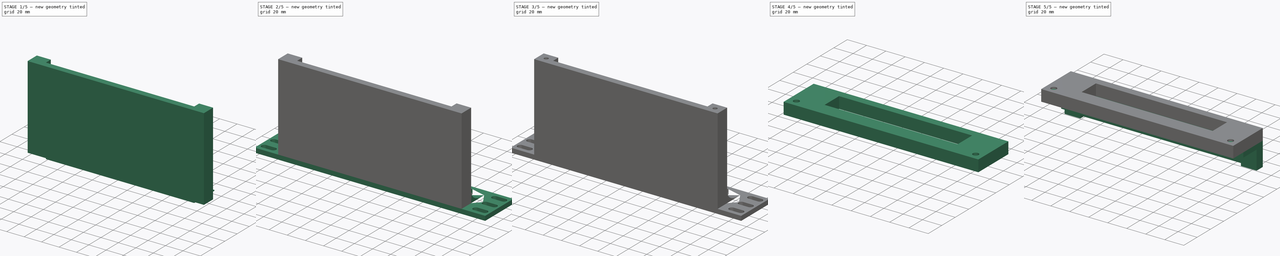
[diagram: build sequence overview — one tinted view per stage of 5, left to right]
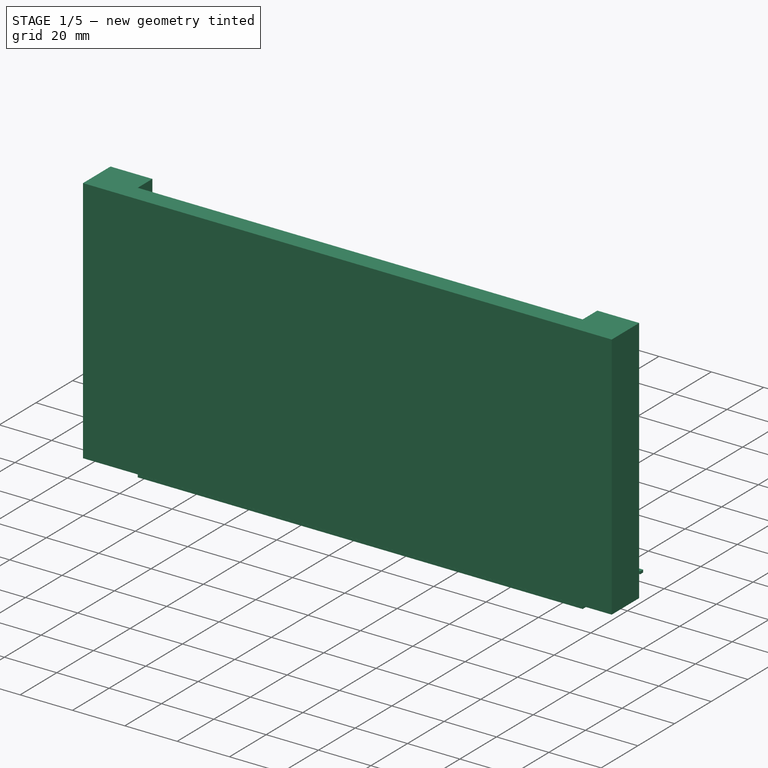
[diagram: stage 1 of 5 — iso view after this stage's code; geometry added in this stage tinted green]
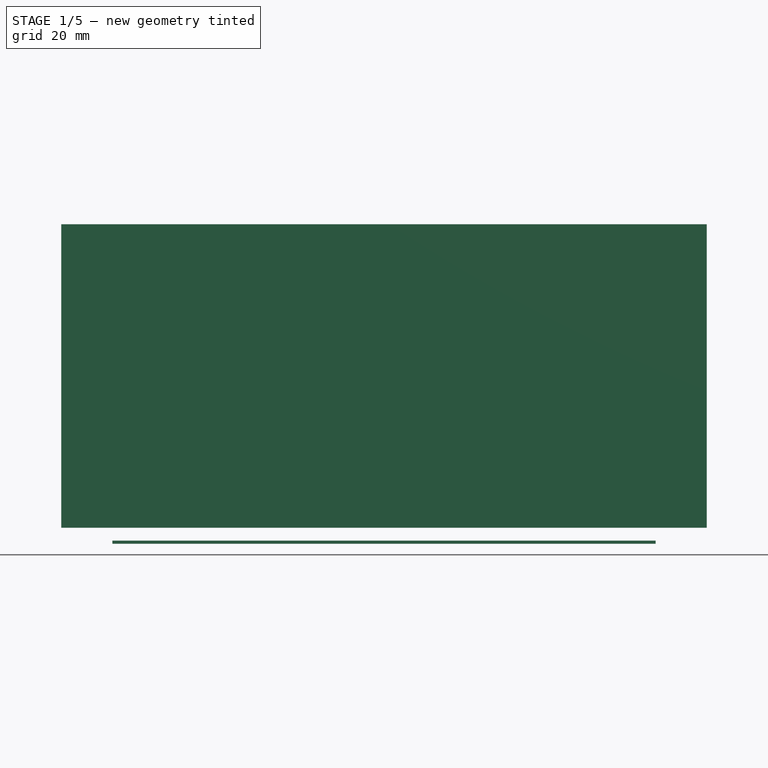
[diagram: stage 1 of 5 — front view after this stage's code; geometry added in this stage tinted green]
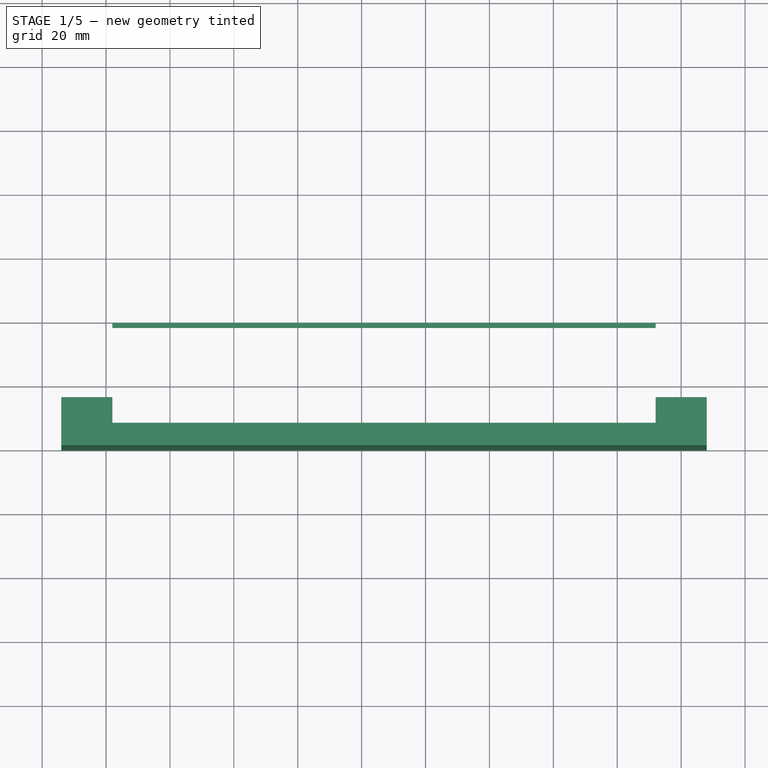
[diagram: stage 1 of 5 — top view after this stage's code; geometry added in this stage tinted green]
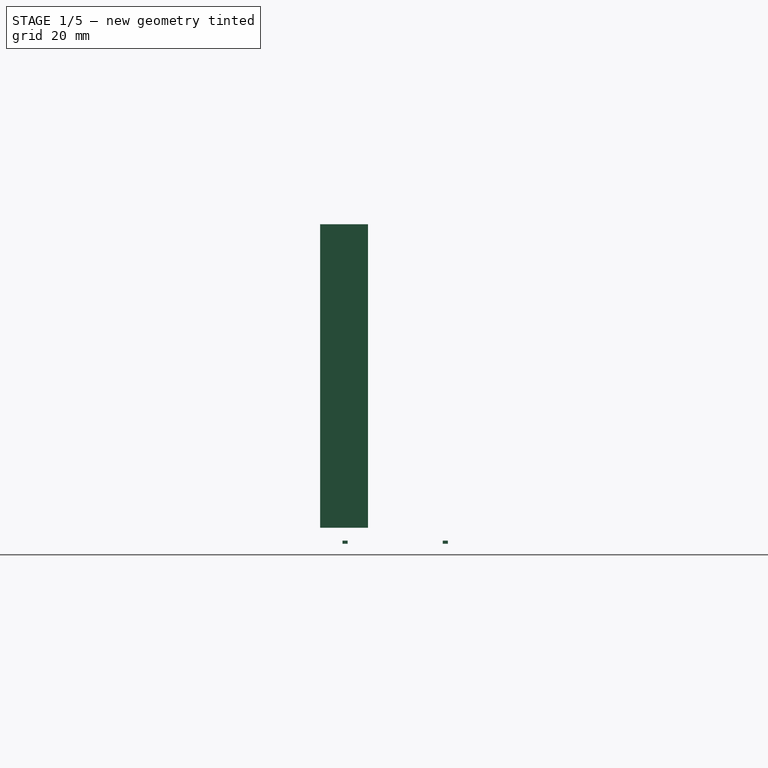
[diagram: stage 1 of 5 — right view after this stage's code; geometry added in this stage tinted green]
FCSTD DOCUMENT  (FreeCAD 0.21RUnknown)
Label: 10InchRackMount
License: All rights reserved
LicenseURL: https://en.wikipedia.org/wiki/All_rights_reserved
objects: Part::Extrusion×12, Sketcher::SketchObject×11, Part::Face×11, Part::Fuse×3, Part::Cut×2, Part::Compound×2
note: 41 computed .brp shape members not serialized (recipe doc carries the construction recipe); baked Part::Feature solids carry a one-line shape summary decoded from their .brp

FEATURE [Sketcher::SketchObject] Sketch
  FullyConstrained = false
  sketch-geometry (53):
    g0: LineSegment StartX=0 StartY=0 StartZ=0 EndX=254 EndY=0 EndZ=0
    g1: LineSegment StartX=254 StartY=0 StartZ=0 EndX=254 EndY=44.44 EndZ=0
    g2: LineSegment StartX=254 StartY=44.44 StartZ=0 EndX=0 EndY=44.44 EndZ=0
    g3: LineSegment StartX=0 StartY=44.44 StartZ=0 EndX=0 EndY=0 EndZ=0
    g4: ArcOfCircle CenterX=5.5 CenterY=37.0333 CenterZ=0 NormalX=0 NormalY=0 NormalZ=1 AngleXU=0 Radius=3.1 StartAngle=1.5708 EndAngle=4.71239
    g5: ArcOfCircle CenterX=15.5 CenterY=37.0333 CenterZ=0 NormalX=0 NormalY=0 NormalZ=1 AngleXU=0 Radius=3.1 StartAngle=4.71239 EndAngle=7.85398
    g6: LineSegment StartX=5.5 StartY=33.9333 StartZ=0 EndX=15.5 EndY=33.9333 EndZ=0
    g7: LineSegment StartX=15.5 StartY=40.1333 StartZ=0 EndX=5.5 EndY=40.1333 EndZ=0
    g8: GeomPoint X=2.4 Y=37.0333 Z=0
    g9: GeomPoint X=18.6 Y=37.0333 Z=0
    g10: ArcOfCircle CenterX=5.5 CenterY=22.22 CenterZ=0 NormalX=0 NormalY=0 NormalZ=1 AngleXU=0 Radius=3.1 StartAngle=1.5708 EndAngle=4.71239
    g11: ArcOfCircle CenterX=15.5 CenterY=22.22 CenterZ=0 NormalX=0 NormalY=0 NormalZ=1 AngleXU=0 Radius=3.1 StartAngle=4.71239 EndAngle=7.85398
    g12: LineSegment StartX=5.5 StartY=19.12 StartZ=0 EndX=15.5 EndY=19.12 EndZ=0
    g13: LineSegment StartX=15.5 StartY=25.32 StartZ=0 EndX=5.5 EndY=25.32 EndZ=0
    g14: ArcOfCircle CenterX=5.5 CenterY=7.40667 CenterZ=0 NormalX=0 NormalY=0 NormalZ=1 AngleXU=0 Radius=3.1 StartAngle=1.5708 EndAngle=4.71239
    g15: ArcOfCircle CenterX=15.5 CenterY=7.40667 CenterZ=0 NormalX=0 NormalY=0 NormalZ=1 AngleXU=0 Radius=3.1 StartAngle=4.71239 EndAngle=7.85398
    g16: LineSegment StartX=5.5 StartY=4.30667 StartZ=0 EndX=15.5 EndY=4.30667 EndZ=0
    g17: LineSegment StartX=15.5 StartY=10.5067 StartZ=0 EndX=5.5 EndY=10.5067 EndZ=0
    g18: ArcOfCircle CenterX=238.5 CenterY=37.0333 CenterZ=0 NormalX=0 NormalY=0 NormalZ=1 AngleXU=0 Radius=3.1 StartAngle=1.5708 EndAngle=4.71239
    g19: ArcOfCircle CenterX=248.5 CenterY=37.0333 CenterZ=0 NormalX=0 NormalY=0 NormalZ=1 AngleXU=0 Radius=3.1 StartAngle=4.71239 EndAngle=7.85398
    g20: LineSegment StartX=238.5 StartY=33.9333 StartZ=0 EndX=248.5 EndY=33.9333 EndZ=0
    g21: LineSegment StartX=248.5 StartY=40.1333 StartZ=0 EndX=238.5 EndY=40.1333 EndZ=0
    g22: ArcOfCircle CenterX=238.5 CenterY=22.22 CenterZ=0 NormalX=0 NormalY=0 NormalZ=1 AngleXU=0 Radius=3.1 StartAngle=1.5708 EndAngle=4.71239
    g23: ArcOfCircle CenterX=248.5 CenterY=22.22 CenterZ=0 NormalX=0 NormalY=0 NormalZ=1 AngleXU=0 Radius=3.1 StartAngle=4.71239 EndAngle=7.85398
    g24: LineSegment StartX=238.5 StartY=19.12 StartZ=0 EndX=248.5 EndY=19.12 EndZ=0
    g25: LineSegment StartX=248.5 StartY=25.32 StartZ=0 EndX=238.5 EndY=25.32 EndZ=0
    g26: ArcOfCircle CenterX=238.5 CenterY=7.40667 CenterZ=0 NormalX=0 NormalY=0 NormalZ=1 AngleXU=0 Radius=3.1 StartAngle=1.5708 EndAngle=4.71239
    g27: ArcOfCircle CenterX=248.5 CenterY=7.40667 CenterZ=0 NormalX=0 NormalY=0 NormalZ=1 AngleXU=0 Radius=3.1 StartAngle=4.71239 EndAngle=7.85398
    g28: LineSegment StartX=238.5 StartY=4.30667 StartZ=0 EndX=248.5 EndY=4.30667 EndZ=0
    g29: LineSegment StartX=248.5 StartY=10.5067 StartZ=0 EndX=238.5 EndY=10.5067 EndZ=0
    g30: LineSegment StartX=5.5 StartY=40.1333 StartZ=0 EndX=5.5 EndY=33.9333 EndZ=0
    g31: LineSegment StartX=5.5 StartY=25.32 StartZ=0 EndX=5.5 EndY=19.12 EndZ=0
    g32: LineSegment StartX=5.5 StartY=10.5067 StartZ=0 EndX=5.5 EndY=4.30667 EndZ=0
    g33: LineSegment StartX=-22.4648 StartY=44.44 StartZ=0 EndX=-22.4648 EndY=22.22 EndZ=0
    g34: LineSegment StartX=-22.4648 StartY=22.22 StartZ=0 EndX=-22.4648 EndY=0 EndZ=0
    g35: LineSegment StartX=-5.0984 StartY=44.44 StartZ=0 EndX=-5.0984 EndY=37.0333 EndZ=0
    g36: LineSegment StartX=-5.0984 StartY=37.0333 StartZ=0 EndX=-5.0984 EndY=29.6267 EndZ=0
    g37: LineSegment StartX=-5.0984 StartY=29.6267 StartZ=0 EndX=-5.0984 EndY=22.22 EndZ=0
    g38: LineSegment StartX=-5.0984 StartY=22.22 StartZ=0 EndX=-5.0984 EndY=14.8133 EndZ=0
    g39: LineSegment StartX=-5.0984 StartY=14.8133 StartZ=0 EndX=-5.0984 EndY=7.40667 EndZ=0
    g40: LineSegment StartX=-5.0984 StartY=7.40667 StartZ=0 EndX=-5.0984 EndY=0 EndZ=0
    g41: LineSegment StartX=5.5 StartY=37.0333 StartZ=0 EndX=15.5 EndY=37.0333 EndZ=0
    g42: LineSegment StartX=238.5 StartY=37.0333 StartZ=0 EndX=248.5 EndY=37.0333 EndZ=0
    g43: LineSegment StartX=248.5 StartY=40.1333 StartZ=0 EndX=248.5 EndY=33.9333 EndZ=0
    g44: LineSegment StartX=248.5 StartY=25.32 StartZ=0 EndX=248.5 EndY=19.12 EndZ=0
    g45: LineSegment StartX=248.5 StartY=10.5067 StartZ=0 EndX=248.5 EndY=4.30667 EndZ=0
    g46: GeomPoint X=251.6 Y=37.0333 Z=0
    g47: LineSegment StartX=212 StartY=7 StartZ=0 EndX=42 EndY=7 EndZ=0
    g48: LineSegment StartX=42 StartY=7 StartZ=0 EndX=42 EndY=40 EndZ=0
    g49: LineSegment StartX=42 StartY=40 StartZ=0 EndX=212 EndY=40 EndZ=0
    g50: LineSegment StartX=212 StartY=40 StartZ=0 EndX=212 EndY=7 EndZ=0
    g51: LineSegment StartX=0 StartY=2.00049e+07 StartZ=0 EndX=42 EndY=2.00049e+07 EndZ=0
    g52: LineSegment StartX=254 StartY=2.00049e+07 StartZ=0 EndX=212 EndY=2.00049e+07 EndZ=0
  constraints (135):
    c: Coincident(g0,g1)
    c: Coincident(g1,g2)
    c: Coincident(g2,g3)
    c: Coincident(g3,g0)
    c: Horizontal(g0)
    c: Horizontal(g2)
    c: Vertical(g1)
    c: Vertical(g3)
    c: Coincident(g0,g-1)
    c: DistanceX(g2,g2) = 254
    c: DistanceY(g3,g3) = 44.44
    c: Tangent(g4,g6) = -1.5708
    c: Tangent(g6,g5) = -1.5708
    c: Tangent(g5,g7) = -1.5708
    c: Tangent(g7,g4) = -1.5708
    c: Equal(g4,g5)
    c: Horizontal(g6)
    c: DistanceY(g5,g5) = 6.2
    c: DistanceX(g4,g5) = 10
    c: PointOnObject(g8,g4)
    c: Horizontal(g8,g4)
    c: PointOnObject(g9,g5)
    c: Horizontal(g9,g5)
    c: DistanceX(g2,g8) = 2.4
    c: Tangent(g10,g12) = -1.5708
    c: Tangent(g12,g11) = -1.5708
    c: Tangent(g11,g13) = -1.5708
    c: Tangent(g13,g10) = -1.5708
    c: Equal(g10,g11)
    c: Horizontal(g12)
    c: Tangent(g14,g16) = -1.5708
    c: Tangent(g16,g15) = -1.5708
    c: Tangent(g15,g17) = -1.5708
    c: Tangent(g17,g14) = -1.5708
    c: Equal(g14,g15)
    c: Horizontal(g16)
    c: Tangent(g18,g20) = -1.5708
    c: Tangent(g20,g19) = -1.5708
    c: Tangent(g19,g21) = -1.5708
    c: Tangent(g21,g18) = -1.5708
    c: Equal(g18,g19)
    c: Horizontal(g20)
    c: Tangent(g22,g24) = -1.5708
    c: Tangent(g24,g23) = -1.5708
    c: Tangent(g23,g25) = -1.5708
    c: Tangent(g25,g22) = -1.5708
    c: Equal(g22,g23)
    c: Horizontal(g24)
    c: Tangent(g26,g28) = -1.5708
    c: Tangent(g28,g27) = -1.5708
    c: Tangent(g27,g29) = -1.5708
    c: Tangent(g29,g26) = -1.5708
    c: Equal(g26,g27)
    c: Horizontal(g28)
    c: Vertical(g4,g10)
    c: Vertical(g5,g11)
    c: Vertical(g4,g14)
    c: Vertical(g15,g5)
    c: Coincident(g30,g4)
    c: Coincident(g30,g4)
    c: Coincident(g31,g10)
    c: Coincident(g31,g10)
    c: Coincident(g32,g14)
    c: Coincident(g32,g14)
    c: Equal(g30,g31)
    c: Equal(g31,g32)
    c: Vertical(g33)
    c: Coincident(g34,g33)
    c: PointOnObject(g34,g-1)
    c: Vertical(g34)
    c: Horizontal(g33,g2)
    c: Equal(g33,g34)
    c: Horizontal(g33,g10)
    c: Vertical(g35)
    c: Coincident(g36,g35)
    c: Vertical(g36)
    c: Coincident(g37,g36)
    c: Vertical(g37)
    c: Coincident(g38,g37)
    c: Vertical(g38)
    c: Coincident(g39,g38)
    c: Vertical(g39)
    c: Coincident(g40,g39)
    c: PointOnObject(g40,g-1)
    c: Vertical(g40)
    c: Horizontal(g35,g2)
    c: Equal(g40,g39)
    c: Equal(g39,g38)
    c: Equal(g38,g37)
    c: Equal(g37,g36)
    c: Equal(g36,g35)
    c: Horizontal(g35,g8)
    c: Horizontal(g39,g14)
    c: Coincident(g41,g4)
    c: Coincident(g41,g5)
    c: Coincident(g42,g18)
    c: Coincident(g42,g19)
    c: Equal(g41,g42)
    c: Vertical(g19,g23)
    c: Vertical(g23,g27)
    c: Vertical(g18,g22)
    c: Vertical(g22,g26)
    c: Coincident(g43,g19)
    c: Coincident(g43,g19)
    c: Coincident(g44,g23)
    c: Coincident(g44,g23)
    c: Coincident(g45,g27)
    c: Coincident(g45,g27)
    c: Equal(g45,g44)
    c: Equal(g44,g43)
    c: Equal(g43,g30)
    c: Horizontal(g18,g35)
    c: Horizontal(g37,g22)
    c: Horizontal(g26,g14)
    c: PointOnObject(g46,g19)
    c: Horizontal(g46,g19)
    c: DistanceX(g46,g1) = 2.4
    c: Coincident(g47,g48)
    c: Coincident(g48,g49)
    c: Coincident(g49,g50)
    c: Coincident(g50,g47)
    c: Horizontal(g47)
    c: Horizontal(g49)
    c: Vertical(g48)
    c: Vertical(g50)
    c: DistanceY(g48,g48) = 33
    c: DistanceX(g49,g49) = 170
    c: PointOnObject(g51,g-2)
    c: Horizontal(g51)
    c: Horizontal(g52)
    c: Vertical(g52,g1)
    c: Vertical(g52,g49)
    c: Vertical(g51,g48)
    c: Equal(g51,g52)
    c: DistanceY(g0,g47) = 7
FEATURE [Part::Face] Face
  FaceMakerClass = Part::FaceMakerBullseye
  Sources = -> [Sketch]
FEATURE [Part::Extrusion] Extrude
  Base = -> Sketch
  Dir = (0,0,1)
  DirMode = 2
  FaceMakerClass = Part::FaceMakerBullseye
  LengthFwd = 5
  LengthRev = 0
  Solid = true
  Symmetric = false
FEATURE [Sketcher::SketchObject] Sketch001
  ExternalGeometry = -> [Extrude]
  FullyConstrained = true
  MapMode = 5
  Placement = pos=(0,0,5) rot=(0,0,1;0rad)
  Support = -> [Extrude]
  sketch-geometry (8):
    g0: LineSegment StartX=212 StartY=15 StartZ=0 EndX=228 EndY=15 EndZ=0
    g1: LineSegment StartX=228 StartY=15 StartZ=0 EndX=228 EndY=0 EndZ=0
    g2: LineSegment StartX=228 StartY=0 StartZ=0 EndX=26 EndY=0 EndZ=0
    g3: LineSegment StartX=26 StartY=0 StartZ=0 EndX=26 EndY=15 EndZ=0
    g4: LineSegment StartX=26 StartY=15 StartZ=0 EndX=42 EndY=15 EndZ=0
    g5: LineSegment StartX=42 StartY=15 StartZ=0 EndX=42 EndY=7 EndZ=0
    g6: LineSegment StartX=42 StartY=7 StartZ=0 EndX=212 EndY=7 EndZ=0
    g7: LineSegment StartX=212 StartY=7 StartZ=0 EndX=212 EndY=15 EndZ=0
  constraints (22):
    c: PointOnObject(g0,g-4)
    c: Horizontal(g0)
    c: Coincident(g1,g0)
    c: PointOnObject(g1,g-1)
    c: Vertical(g1)
    c: Coincident(g2,g1)
    c: PointOnObject(g2,g-1)
    c: Coincident(g3,g2)
    c: Vertical(g3)
    c: Coincident(g4,g3)
    c: PointOnObject(g4,g-5)
    c: Horizontal(g4)
    c: Coincident(g5,g4)
    c: Coincident(g5,g-5)
    c: Coincident(g6,g5)
    c: Coincident(g6,g-4)
    c: Coincident(g7,g6)
    c: Coincident(g7,g0)
    c: Horizontal(g0,g4)
    c: Equal(g4,g0)
    c: DistanceX(g0,g0) = 16
    c: DistanceY(g7,g7) = 8
FEATURE [Part::Face] Face001
  FaceMakerClass = Part::FaceMakerBullseye
  Sources = -> [Sketch001]
FEATURE [Part::Extrusion] Extrude001
  Base = -> Face001
  Dir = (0,0,1)
  DirMode = 2
  FaceMakerClass = Part::FaceMakerBullseye
  LengthFwd = 95
  LengthRev = 0
  Solid = false
  Symmetric = false
FEATURE [Sketcher::SketchObject] Sketch005
  ExternalGeometry = -> [Extrude]
  FullyConstrained = true
  MapMode = 5
  Placement = pos=(0,7,0) rot=(0,0.707107,0.707107;3.14159rad)
  Support = -> [Extrude]
  sketch-geometry (4):
    g0: LineSegment StartX=-212 StartY=0 StartZ=0 EndX=-42 EndY=0 EndZ=0
    g1: LineSegment StartX=-42 StartY=0 StartZ=0 EndX=-42 EndY=1 EndZ=0
    g2: LineSegment StartX=-42 StartY=1 StartZ=0 EndX=-212 EndY=1 EndZ=0
    g3: LineSegment StartX=-212 StartY=1 StartZ=0 EndX=-212 EndY=0 EndZ=0
  constraints (10):
    c: Coincident(g0,g1)
    c: Coincident(g1,g2)
    c: Coincident(g2,g3)
    c: Coincident(g3,g0)
    c: Horizontal(g2)
    c: Vertical(g1)
    c: Vertical(g3)
    c: Coincident(g0,g-3)
    c: Coincident(g0,g-3)
    c: Distance(g2,g0) = 1
FEATURE [Part::Face] Face005
  FaceMakerClass = Part::FaceMakerBullseye
  Sources = -> [Sketch005]
FEATURE [Part::Extrusion] Extrude006
  Base = -> Face005
  Dir = (0,1,0)
  DirMode = 2
  FaceMakerClass = Part::FaceMakerBullseye
  LengthFwd = 1.6
  LengthRev = 0
  Solid = false
  Symmetric = false
FEATURE [Sketcher::SketchObject] Sketch006
  ExternalGeometry = -> [Extrude]
  FullyConstrained = true
  MapMode = 5
  Placement = pos=(0,40,0) rot=(1,0,0;1.5708rad)
  Support = -> [Extrude]
  sketch-geometry (4):
    g0: LineSegment StartX=42 StartY=0 StartZ=0 EndX=212 EndY=0 EndZ=0
    g1: LineSegment StartX=212 StartY=0 StartZ=0 EndX=212 EndY=1 EndZ=0
    g2: LineSegment StartX=212 StartY=1 StartZ=0 EndX=42 EndY=1 EndZ=0
    g3: LineSegment StartX=42 StartY=1 StartZ=0 EndX=42 EndY=0 EndZ=0
  constraints (10):
    c: Coincident(g0,g1)
    c: Coincident(g1,g2)
    c: Coincident(g2,g3)
    c: Coincident(g3,g0)
    c: Horizontal(g2)
    c: Vertical(g1)
    c: Vertical(g3)
    c: Coincident(g0,g-3)
    c: Distance(g1,g0) = 1
    c: Coincident(g-3,g0)
FEATURE [Part::Face] Face006
  FaceMakerClass = Part::FaceMakerBullseye
  Sources = -> [Sketch006]
FEATURE [Part::Extrusion] Extrude007
  Base = -> Face006
  Dir = (0,1,0)
  DirMode = 2
  FaceMakerClass = Part::FaceMakerBullseye
  LengthFwd = -1.6
  LengthRev = 0
  Solid = false
  Symmetric = false
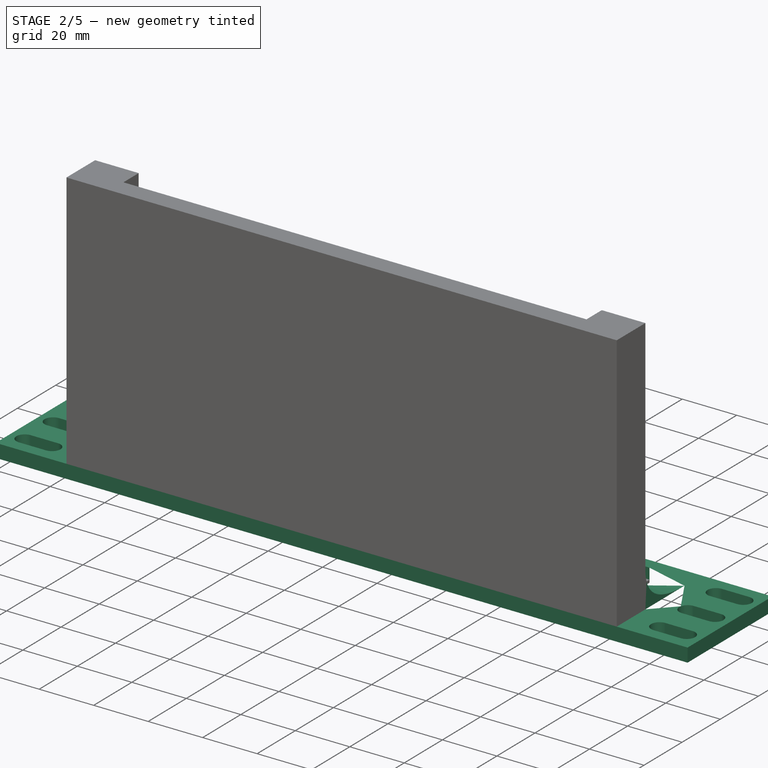
[diagram: stage 2 of 5 — iso view after this stage's code; geometry added in this stage tinted green]
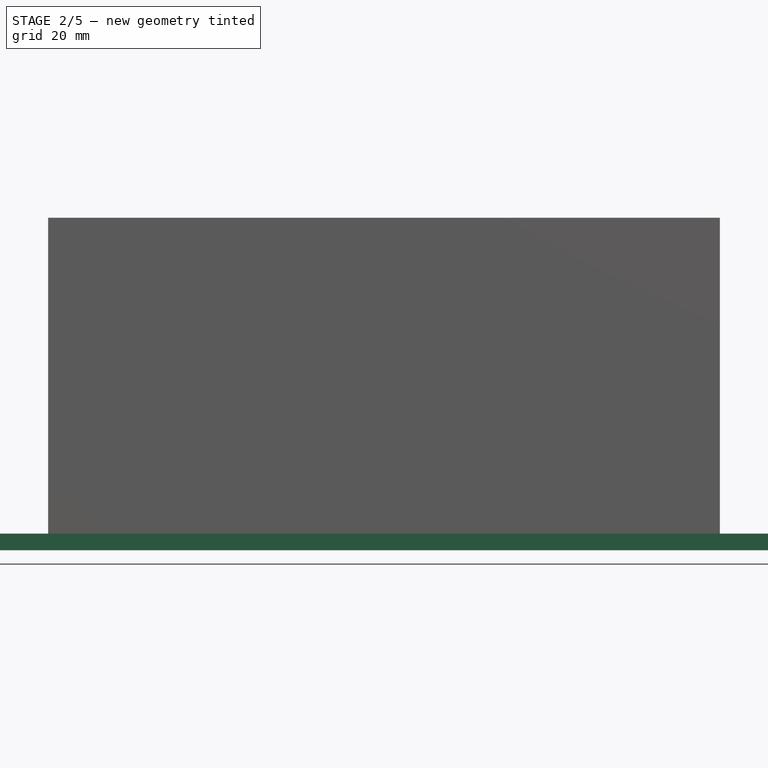
[diagram: stage 2 of 5 — front view after this stage's code; geometry added in this stage tinted green]
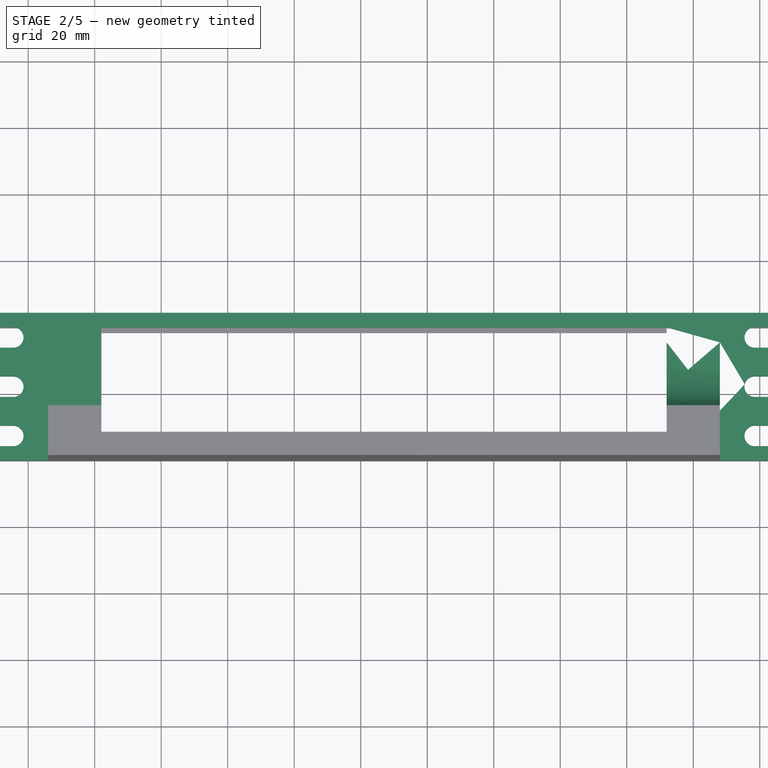
[diagram: stage 2 of 5 — top view after this stage's code; geometry added in this stage tinted green]
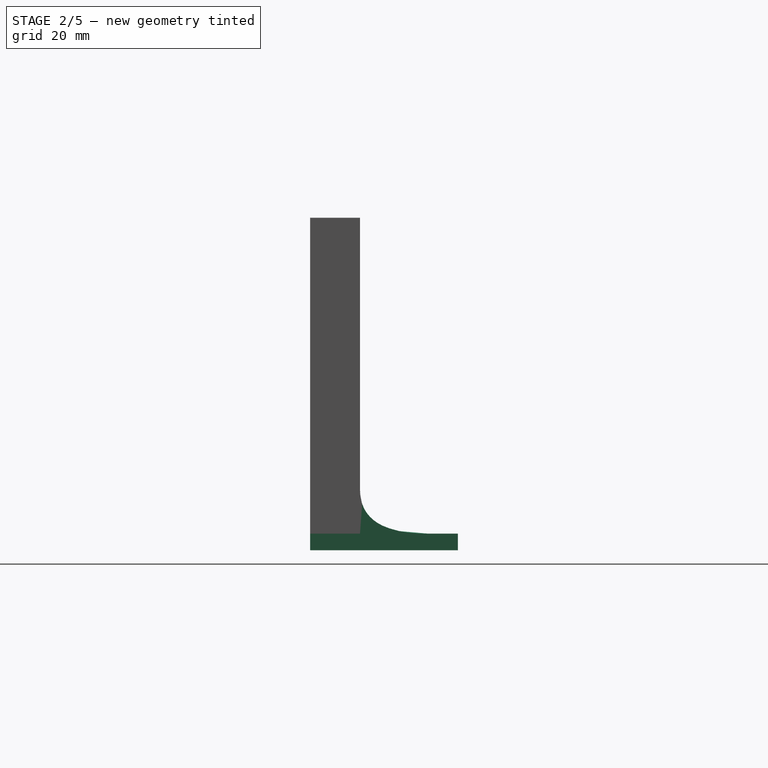
[diagram: stage 2 of 5 — right view after this stage's code; geometry added in this stage tinted green]
FEATURE [Sketcher::SketchObject] Sketch003
  ExternalGeometry = -> [Extrude001]
  FullyConstrained = false
  MapMode = 5
  Placement = pos=(228,0,0) rot=(0.57735,0.57735,0.57735;2.0944rad)
  Support = -> [Extrude001]
  sketch-geometry (8):
    g0: LineSegment StartX=15 StartY=5 StartZ=0 EndX=35.5194 EndY=5 EndZ=0
    g1: LineSegment StartX=15 StartY=5 StartZ=0 EndX=15 EndY=18.2604 EndZ=0
    g2: Circle CenterX=15 CenterY=18.2604 CenterZ=0 NormalX=0 NormalY=0 NormalZ=1 AngleXU=0 Radius=1
    g3: Circle CenterX=14.9978 CenterY=4.99678 CenterZ=0 NormalX=0 NormalY=0 NormalZ=1 AngleXU=0 Radius=1
    g4: Circle CenterX=35.5194 CenterY=5 CenterZ=0 NormalX=0 NormalY=0 NormalZ=1 AngleXU=0 Radius=1
    g5: BSplineCurve PolesCount=3 KnotsCount=2 Degree=2 IsPeriodic=0
    g6: GeomPoint X=15 Y=18.2604 Z=0
    g7: GeomPoint X=35.5194 Y=5 Z=0
  constraints (14):
    c: Coincident(g0,g-3)
    c: Horizontal(g0)
    c: Coincident(g1,g0)
    c: PointOnObject(g1,g-3)
    c: Weight(g2) = 1
    c: Coincident(g5,g1)
    c: Equal(g2,g3)
    c: Equal(g2,g4)
    c: Coincident(g5,g0)
    c: InternalAlignment(g2,g5)
    c: InternalAlignment(g3,g5)
    c: InternalAlignment(g4,g5)
    c: InternalAlignment(g6,g5)
    c: InternalAlignment(g7,g5)
FEATURE [Part::Face] Face003
  FaceMakerClass = Part::FaceMakerBullseye
  Sources = -> [Sketch003]
FEATURE [Part::Extrusion] Extrude003
  Base = -> Sketch003
  Dir = (1,0,0)
  DirMode = 2
  FaceMakerClass = Part::FaceMakerBullseye
  LengthFwd = -16
  LengthRev = 0
  Solid = true
  Symmetric = false
FEATURE [Part::Fuse] Fusion
  Base = -> Extrude
  Tool = -> Extrude001
FEATURE [Part::Fuse] Fusion001
  Base = -> Extrude003
  Tool = -> Fusion
FEATURE [Sketcher::SketchObject] Sketch004
  ExternalGeometry = -> [Extrude001]
  FullyConstrained = true
  MapMode = 5
  Placement = pos=(0,0,100) rot=(0,0,1;0rad)
  Support = -> [Extrude001]
  sketch-geometry (6):
    g0: Circle CenterX=34 CenterY=7.5 CenterZ=0 NormalX=0 NormalY=0 NormalZ=1 AngleXU=0 Radius=2.25
    g1: Circle CenterX=220 CenterY=7.5 CenterZ=0 NormalX=0 NormalY=0 NormalZ=1 AngleXU=0 Radius=2.25
    g2: LineSegment StartX=26 StartY=15 StartZ=0 EndX=42 EndY=1.8e-15 EndZ=0
    g3: LineSegment StartX=228 StartY=15 StartZ=0 EndX=212 EndY=1.8e-15 EndZ=0
    g4: LineSegment StartX=212 StartY=15 StartZ=0 EndX=228 EndY=1.8e-15 EndZ=0
    g5: LineSegment StartX=42 StartY=15 StartZ=0 EndX=26 EndY=1.8e-15 EndZ=0
  constraints (16):
    c: Diameter(g1) = 4.5
    c: Diameter(g0) = 4.5
    c: Coincident(g2,g-6)
    c: PointOnObject(g2,g-1)
    c: Coincident(g3,g-5)
    c: PointOnObject(g3,g-1)
    c: Coincident(g4,g-3)
    c: Coincident(g4,g-5)
    c: Coincident(g5,g-4)
    c: Coincident(g5,g-6)
    c: Vertical(g2,g5)
    c: Vertical(g4,g3)
    c: PointOnObject(g0,g5)
    c: PointOnObject(g0,g2)
    c: PointOnObject(g1,g4)
    c: PointOnObject(g1,g3)
FEATURE [Part::Face] Face004
  FaceMakerClass = Part::FaceMakerBullseye
  Sources = -> [Sketch004]
FEATURE [Part::Extrusion] Extrude005
  Base = -> Face004
  Dir = (0,0,1)
  DirMode = 2
  FaceMakerClass = Part::FaceMakerBullseye
  LengthFwd = -10
  LengthRev = 0
  Solid = false
  Symmetric = false
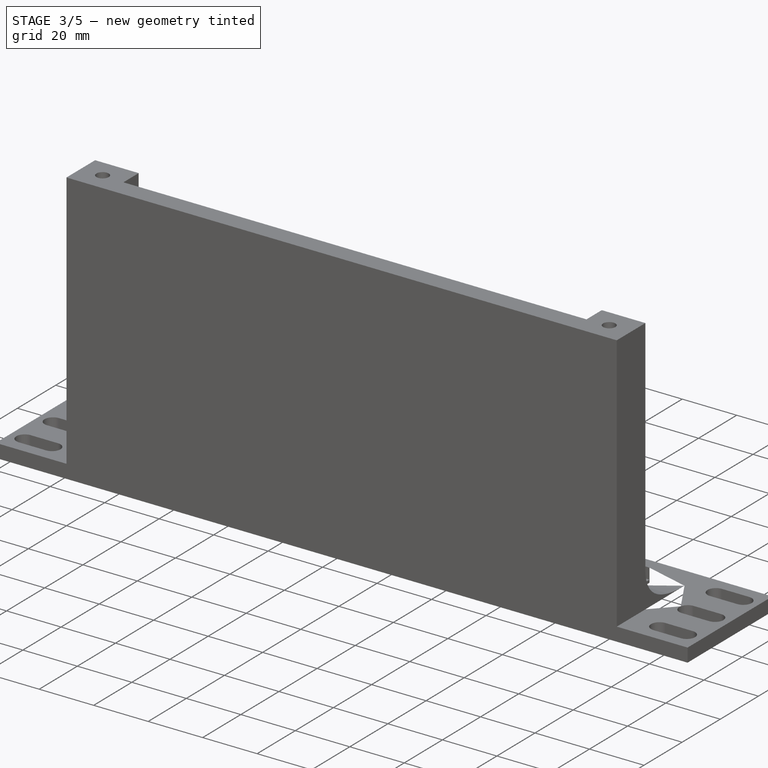
[diagram: stage 3 of 5 — iso view after this stage's code; geometry added in this stage tinted green]
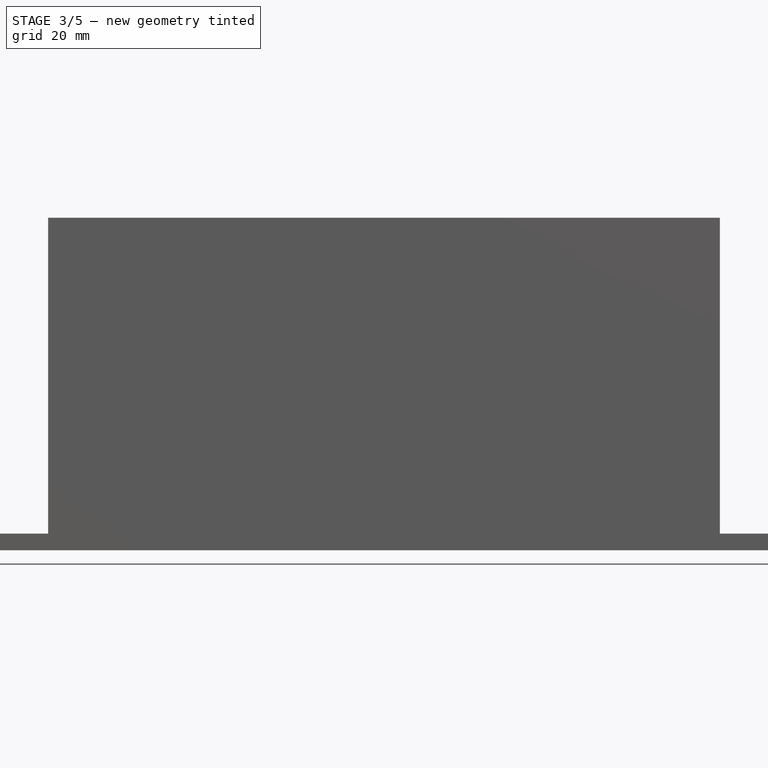
[diagram: stage 3 of 5 — front view after this stage's code; geometry added in this stage tinted green]
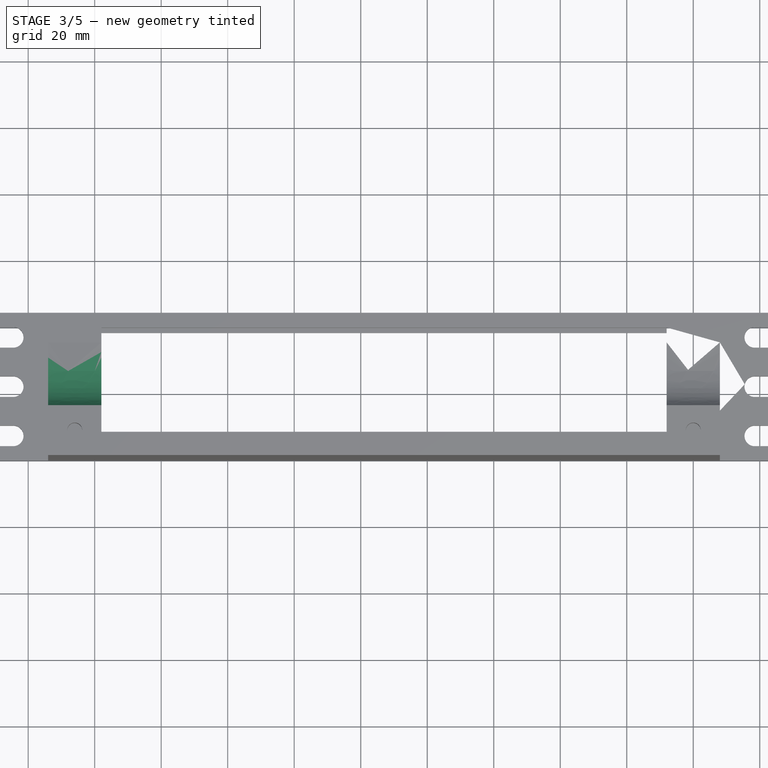
[diagram: stage 3 of 5 — top view after this stage's code; geometry added in this stage tinted green]
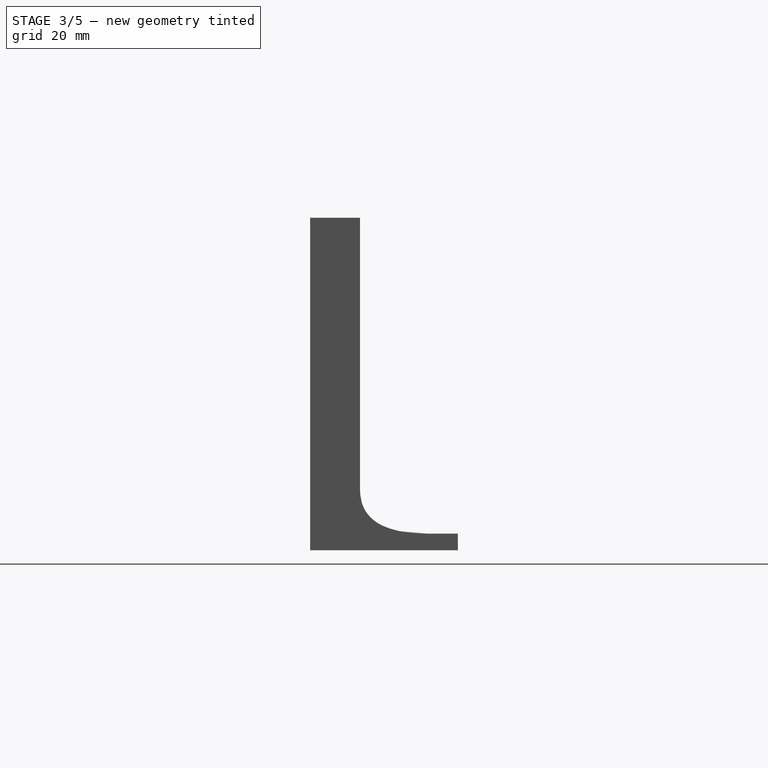
[diagram: stage 3 of 5 — right view after this stage's code; geometry added in this stage tinted green]
FEATURE [Part::Extrusion] Extrude004
  Base = -> Sketch003
  Dir = (1,0,0)
  DirMode = 2
  FaceMakerClass = Part::FaceMakerBullseye
  LengthFwd = -16
  LengthRev = 0
  Placement = pos=(-186,0,0) rot=(0,0,1;0rad)
  Solid = true
  Symmetric = false
FEATURE [Part::Cut] Cut
  Base = -> Fusion001
  Tool = -> Extrude005
FEATURE [Part::Fuse] Fusion002
  Base = -> Extrude004
  Tool = -> Cut
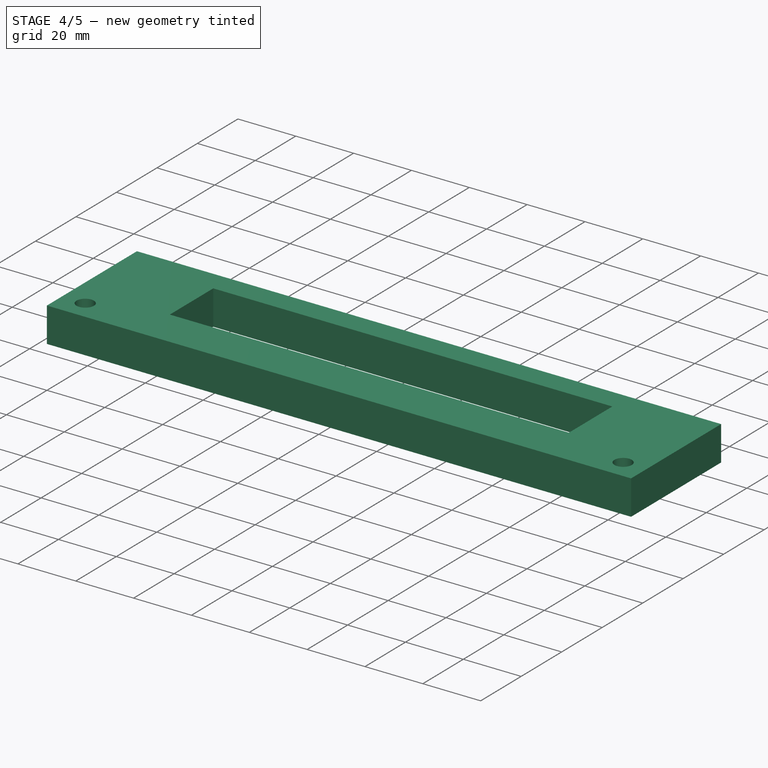
[diagram: stage 4 of 5 — iso view after this stage's code; geometry added in this stage tinted green]
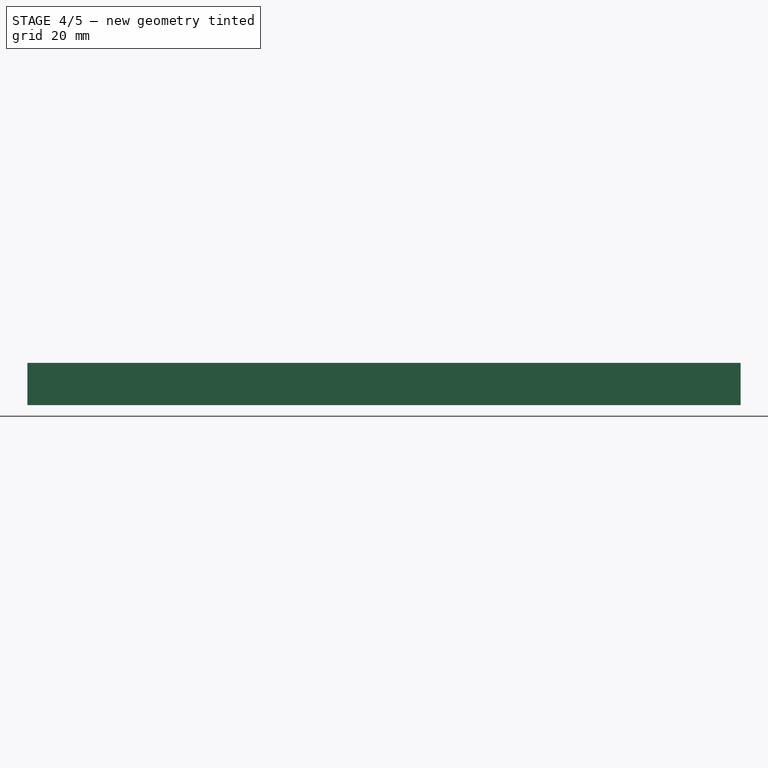
[diagram: stage 4 of 5 — front view after this stage's code; geometry added in this stage tinted green]
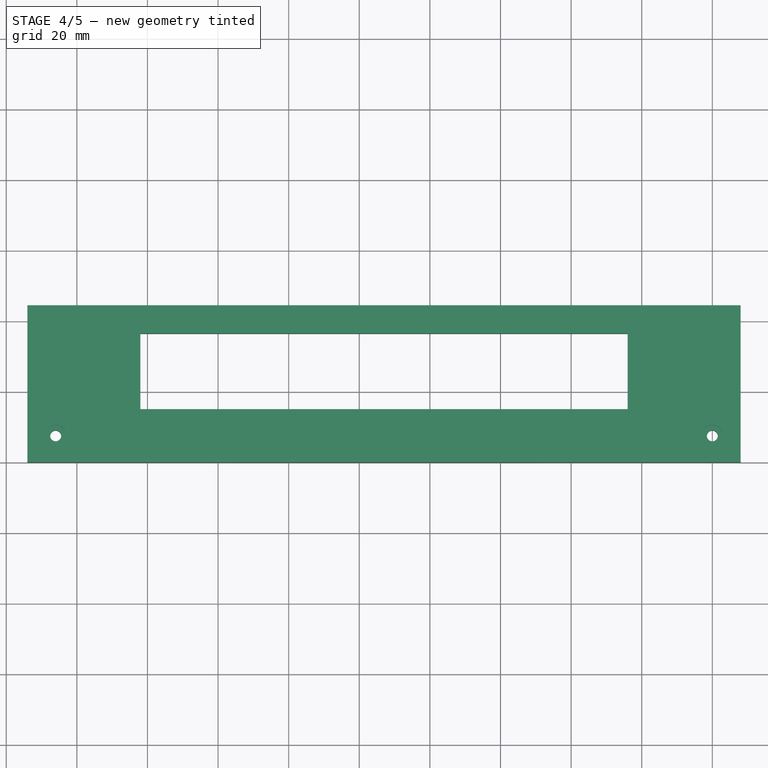
[diagram: stage 4 of 5 — top view after this stage's code; geometry added in this stage tinted green]
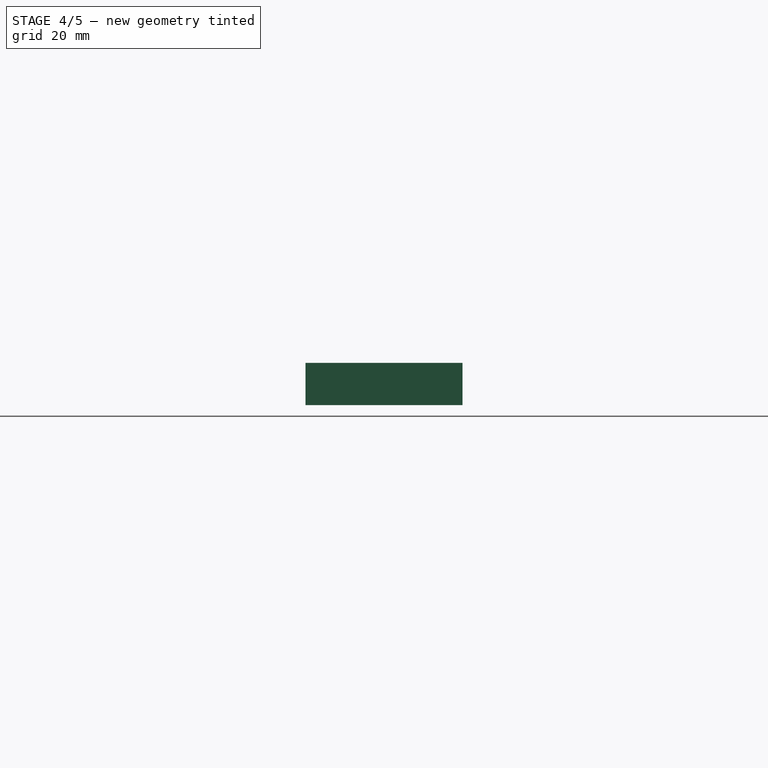
[diagram: stage 4 of 5 — right view after this stage's code; geometry added in this stage tinted green]
FEATURE [Part::Compound] Compound
  Links = -> [Fusion002,Extrude006,Extrude007]
FEATURE [Sketcher::SketchObject] Sketch007
  ExternalGeometry = -> [Extrude001,Extrude,Compound]
  FullyConstrained = true
  MapMode = 5
  Placement = pos=(0,0,100) rot=(0,0,1;0rad)
  Support = -> [Extrude001]
  sketch-geometry (16):
    g0: LineSegment StartX=26 StartY=1.8e-15 StartZ=0 EndX=26 EndY=44.44 EndZ=0
    g1: LineSegment StartX=228 StartY=0 StartZ=0 EndX=228 EndY=44.44 EndZ=0
    g2: LineSegment StartX=26 StartY=15 StartZ=0 EndX=42 EndY=15 EndZ=0
    g3: LineSegment StartX=42 StartY=15 StartZ=0 EndX=58 EndY=15 EndZ=0
    g4: LineSegment StartX=228 StartY=15 StartZ=0 EndX=212 EndY=15 EndZ=0
    g5: LineSegment StartX=212 StartY=15 StartZ=0 EndX=196 EndY=15 EndZ=0
    g6: LineSegment StartX=58 StartY=15 StartZ=0 EndX=196 EndY=15 EndZ=0
    g7: LineSegment StartX=196 StartY=15 StartZ=0 EndX=196 EndY=36.44 EndZ=0
    g8: LineSegment StartX=196 StartY=36.44 StartZ=0 EndX=58 EndY=36.44 EndZ=0
    g9: LineSegment StartX=58 StartY=36.44 StartZ=0 EndX=58 EndY=15 EndZ=0
    g10: LineSegment StartX=26 StartY=44.44 StartZ=0 EndX=228 EndY=44.44 EndZ=0
    g11: LineSegment StartX=228 StartY=0 StartZ=0 EndX=26 EndY=1.8e-15 EndZ=0
    g12: LineSegment StartX=42 StartY=15 StartZ=0 EndX=26 EndY=1.8e-15 EndZ=0
    g13: LineSegment StartX=26 StartY=15 StartZ=0 EndX=42 EndY=1.8e-15 EndZ=0
    g14: Circle CenterX=34 CenterY=7.5 CenterZ=0 NormalX=0 NormalY=0 NormalZ=1 AngleXU=0 Radius=1.55
    g15: Circle CenterX=220 CenterY=7.5 CenterZ=0 NormalX=0 NormalY=0 NormalZ=1 AngleXU=0 Radius=1.55
  constraints (40):
    c: Coincident(g0,g-4)
    c: PointOnObject(g0,g-5)
    c: Vertical(g0)
    c: Coincident(g1,g-3)
    c: PointOnObject(g1,g-5)
    c: Vertical(g1)
    c: Coincident(g2,g-4)
    c: Coincident(g2,g-6)
    c: Coincident(g3,g2)
    c: Horizontal(g3)
    c: Coincident(g4,g-3)
    c: Coincident(g4,g-7)
    c: Coincident(g5,g4)
    c: Horizontal(g5)
    c: Equal(g2,g3)
    c: Equal(g5,g4)
    c: Coincident(g6,g3)
    c: Coincident(g6,g5)
    c: Coincident(g7,g6)
    c: Vertical(g7)
    c: Coincident(g8,g7)
    c: Horizontal(g8)
    c: Coincident(g9,g8)
    c: Coincident(g9,g6)
    c: Vertical(g9)
    c: Coincident(g10,g0)
    c: Coincident(g10,g1)
    c: Coincident(g11,g1)
    c: Coincident(g11,g0)
    c: Coincident(g12,g2)
    c: Coincident(g12,g0)
    c: Coincident(g13,g2)
    c: PointOnObject(g13,g11)
    c: Vertical(g13,g-6)
    c: PointOnObject(g14,g12)
    c: PointOnObject(g14,g13)
    c: Diameter(g14) = 3.1
    c: Coincident(g15,g-8)
    c: Diameter(g15) = 3.1
    c: DistanceY(g7,g1) = 8
FEATURE [Part::Face] Face007
  FaceMakerClass = Part::FaceMakerBullseye
  Sources = -> [Sketch007]
FEATURE [Part::Extrusion] Extrude008
  Base = -> Face007
  Dir = (0,0,1)
  DirMode = 2
  FaceMakerClass = Part::FaceMakerBullseye
  LengthFwd = 12
  LengthRev = 0
  Solid = false
  Symmetric = false
FEATURE [Sketcher::SketchObject] Sketch008
  ExternalGeometry = -> [Extrude008]
  FullyConstrained = true
  MapMode = 5
  Placement = pos=(0,0,112) rot=(0,0,1;0rad)
  Support = -> [Extrude008]
  sketch-geometry (2):
    g0: Circle CenterX=34 CenterY=7.5 CenterZ=0 NormalX=0 NormalY=0 NormalZ=1 AngleXU=0 Radius=3
    g1: Circle CenterX=220 CenterY=7.5 CenterZ=0 NormalX=0 NormalY=0 NormalZ=1 AngleXU=0 Radius=3
  constraints (4):
    c: Coincident(g0,g-3)
    c: Diameter(g0) = 6
    c: Coincident(g1,g-4)
    c: Diameter(g1) = 6
FEATURE [Part::Face] Face008
  FaceMakerClass = Part::FaceMakerBullseye
  Sources = -> [Sketch008]
FEATURE [Part::Extrusion] Extrude009
  Base = -> Face008
  Dir = (0,0,1)
  DirMode = 2
  FaceMakerClass = Part::FaceMakerBullseye
  LengthFwd = -3.4
  LengthRev = 0
  Solid = false
  Symmetric = false
FEATURE [Part::Cut] Cut001
  Base = -> Extrude008
  Tool = -> Extrude009
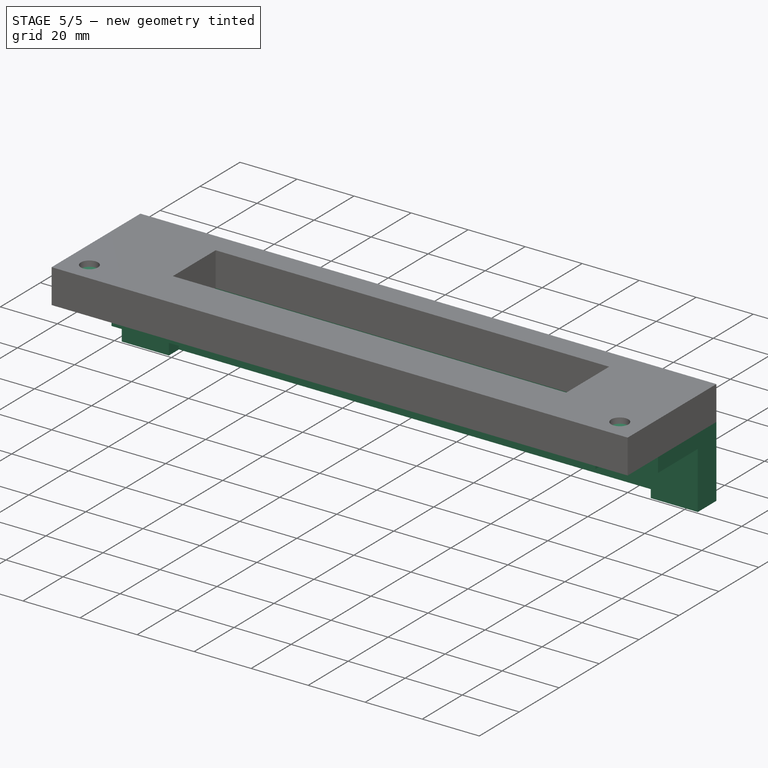
[diagram: stage 5 of 5 — iso view after this stage's code; geometry added in this stage tinted green]
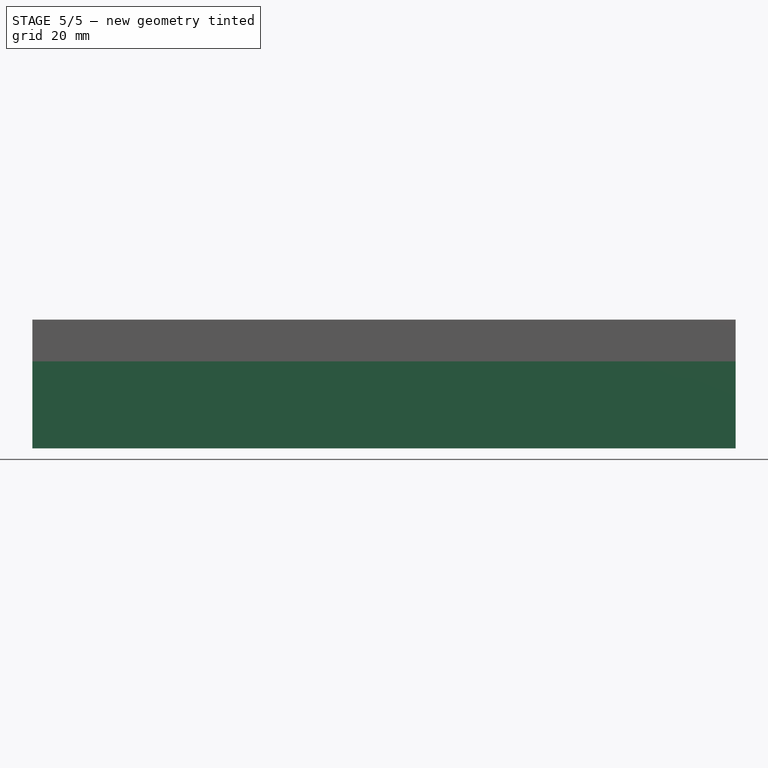
[diagram: stage 5 of 5 — front view after this stage's code; geometry added in this stage tinted green]
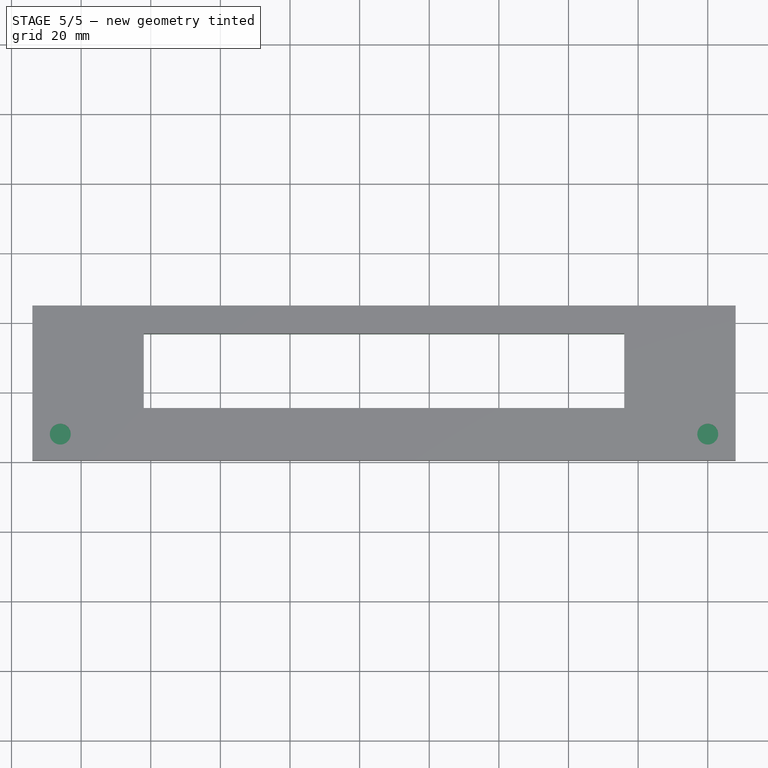
[diagram: stage 5 of 5 — top view after this stage's code; geometry added in this stage tinted green]
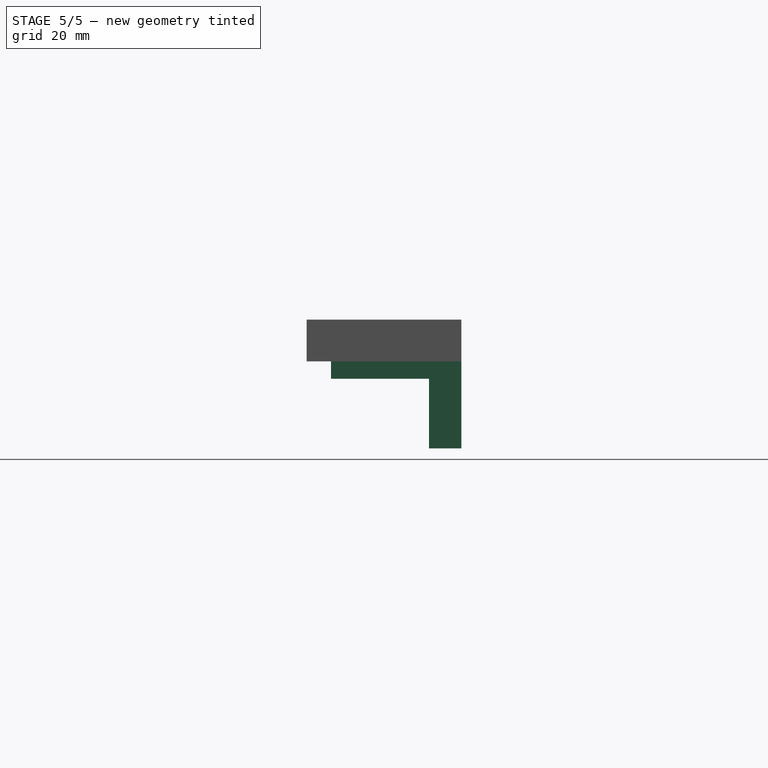
[diagram: stage 5 of 5 — right view after this stage's code; geometry added in this stage tinted green]
FEATURE [Sketcher::SketchObject] Sketch002
  ExternalGeometry = -> [Extrude001]
  FullyConstrained = true
  MapMode = 5
  Placement = pos=(0,0,100) rot=(0,0,1;0rad)
  Support = -> [Extrude001]
  sketch-geometry (4):
    g0: LineSegment StartX=26 StartY=0 StartZ=0 EndX=228 EndY=0 EndZ=0
    g1: LineSegment StartX=228 StartY=0 StartZ=0 EndX=228 EndY=15 EndZ=0
    g2: LineSegment StartX=228 StartY=15 StartZ=0 EndX=26 EndY=15 EndZ=0
    g3: LineSegment StartX=26 StartY=15 StartZ=0 EndX=26 EndY=0 EndZ=0
  constraints (10):
    c: Coincident(g0,g1)
    c: Coincident(g1,g2)
    c: Coincident(g2,g3)
    c: Coincident(g3,g0)
    c: Horizontal(g0)
    c: Horizontal(g2)
    c: Vertical(g1)
    c: Vertical(g3)
    c: Coincident(g0,g-3)
    c: Coincident(g1,g-4)
FEATURE [Part::Face] Face002
  FaceMakerClass = Part::FaceMakerBullseye
  Sources = -> [Sketch002]
FEATURE [Part::Extrusion] Extrude002
  Base = -> Sketch002
  Dir = (0,0,1)
  DirMode = 2
  FaceMakerClass = Part::FaceMakerBullseye
  LengthFwd = 10
  LengthRev = 0
  Solid = true
  Symmetric = false
FEATURE [Sketcher::SketchObject] Sketch009
  ExternalGeometry = -> [Sketch007,Extrude001,Compound]
  FullyConstrained = true
  MapMode = 5
  Placement = pos=(0,0,100) rot=(1,0,0;3.14159rad)
  Support = -> [Cut001]
  sketch-geometry (12):
    g0: LineSegment StartX=211.8 StartY=-15.2 StartZ=0 EndX=211.8 EndY=-7 EndZ=0
    g1: LineSegment StartX=211.8 StartY=-15.2 StartZ=0 EndX=228 EndY=-15.2 EndZ=0
    g2: LineSegment StartX=228 StartY=-15.2 StartZ=0 EndX=228 EndY=-44.44 EndZ=0
    g3: LineSegment StartX=228 StartY=-44.44 StartZ=0 EndX=26 EndY=-44.44 EndZ=0
    g4: LineSegment StartX=42.1 StartY=-15.1 StartZ=0 EndX=26 EndY=-15.1 EndZ=0
    g5: LineSegment StartX=26 StartY=-15.1 StartZ=0 EndX=26 EndY=-44.44 EndZ=0
    g6: LineSegment StartX=42.1 StartY=-15.1 StartZ=0 EndX=42.1 EndY=-7 EndZ=0
    g7: LineSegment StartX=42.1 StartY=-7 StartZ=0 EndX=211.8 EndY=-7 EndZ=0
    g8: LineSegment StartX=196 StartY=-36.44 StartZ=0 EndX=58 EndY=-36.44 EndZ=0
    g9: LineSegment StartX=58 StartY=-36.44 StartZ=0 EndX=58 EndY=-15 EndZ=0
    g10: LineSegment StartX=58 StartY=-15 StartZ=0 EndX=196 EndY=-15 EndZ=0
    g11: LineSegment StartX=196 StartY=-15 StartZ=0 EndX=196 EndY=-36.44 EndZ=0
  constraints (32):
    c: Vertical(g0)
    c: PointOnObject(g0,g-11)
    c: DistanceY(g0,g-12) = 0.2
    c: DistanceX(g0,g-12) = 0.2
    c: Coincident(g1,g0)
    c: PointOnObject(g1,g-3)
    c: Horizontal(g1)
    c: Coincident(g2,g-4)
    c: Coincident(g3,g2)
    c: Coincident(g3,g-5)
    c: PointOnObject(g4,g-5)
    c: Horizontal(g4)
    c: DistanceY(g4,g-10) = 0.1
    c: DistanceX(g-10,g4) = 0.1
    c: Coincident(g5,g4)
    c: Coincident(g5,g3)
    c: Coincident(g6,g4)
    c: PointOnObject(g6,g-11)
    c: Vertical(g6)
    c: Coincident(g7,g6)
    c: Coincident(g8,g9)
    c: Coincident(g9,g10)
    c: Coincident(g10,g11)
    c: Coincident(g11,g8)
    c: Horizontal(g8)
    c: Horizontal(g10)
    c: Vertical(g9)
    c: Vertical(g11)
    c: Coincident(g8,g-8)
    c: Coincident(g9,g-9)
    c: Coincident(g0,g7)
    c: Coincident(g1,g2)
FEATURE [Part::Face] Face009
  FaceMakerClass = Part::FaceMakerBullseye
  Sources = -> [Sketch009]
FEATURE [Part::Extrusion] Extrude010
  Base = -> Sketch009
  Dir = (0,0,-1)
  DirMode = 2
  FaceMakerClass = Part::FaceMakerBullseye
  LengthFwd = 5
  LengthRev = 0
  Solid = true
  Symmetric = false
FEATURE [Sketcher::SketchObject] Sketch010
  ExternalGeometry = -> [Extrude010]
  FullyConstrained = true
  MapMode = 5
  Placement = pos=(0,0,95) rot=(1,0,0;3.14159rad)
  Support = -> [Extrude010]
  sketch-geometry (8):
    g0: LineSegment StartX=211.5 StartY=-35.14 StartZ=0 EndX=228 EndY=-35.14 EndZ=0
    g1: LineSegment StartX=42.5 StartY=-35.14 StartZ=0 EndX=26 EndY=-35.14 EndZ=0
    g2: LineSegment StartX=228 StartY=-35.14 StartZ=0 EndX=228 EndY=-44.44 EndZ=0
    g3: LineSegment StartX=228 StartY=-44.44 StartZ=0 EndX=26 EndY=-44.44 EndZ=0
    g4: LineSegment StartX=26 StartY=-44.44 StartZ=0 EndX=26 EndY=-35.14 EndZ=0
    g5: LineSegment StartX=211.5 StartY=-35.14 StartZ=0 EndX=211.5 EndY=-40.14 EndZ=0
    g6: LineSegment StartX=211.5 StartY=-40.14 StartZ=0 EndX=42.5 EndY=-40.14 EndZ=0
    g7: LineSegment StartX=42.5 StartY=-35.14 StartZ=0 EndX=42.5 EndY=-40.14 EndZ=0
  constraints (22):
    c: PointOnObject(g0,g-5)
    c: Horizontal(g0)
    c: DistanceX(g0,g0) = 16.5
    c: PointOnObject(g1,g-4)
    c: Horizontal(g1)
    c: DistanceX(g1,g1) = 16.5
    c: Coincident(g2,g0)
    c: Coincident(g2,g-5)
    c: Coincident(g3,g2)
    c: Coincident(g3,g-4)
    c: Coincident(g4,g3)
    c: Coincident(g1,g4)
    c: Coincident(g5,g0)
    c: Vertical(g5)
    c: Coincident(g6,g5)
    c: Horizontal(g6)
    c: Coincident(g7,g1)
    c: Coincident(g7,g6)
    c: Vertical(g7)
    c: DistanceY(g2,g5) = 4.3
    c: DistanceY(g5,g5) = 5
    c: DistanceY(g7,g7) = 5
FEATURE [Part::Face] Face010
  FaceMakerClass = Part::FaceMakerBullseye
  Sources = -> [Sketch010]
FEATURE [Part::Extrusion] Extrude011
  Base = -> Face010
  Dir = (0,0,1)
  DirMode = 2
  FaceMakerClass = Part::FaceMakerBullseye
  LengthFwd = -20
  LengthRev = 0
  Solid = false
  Symmetric = false
FEATURE [Part::Compound] Compound001  label="BackClamp"
  Links = -> [Extrude010,Extrude011,Cut001]
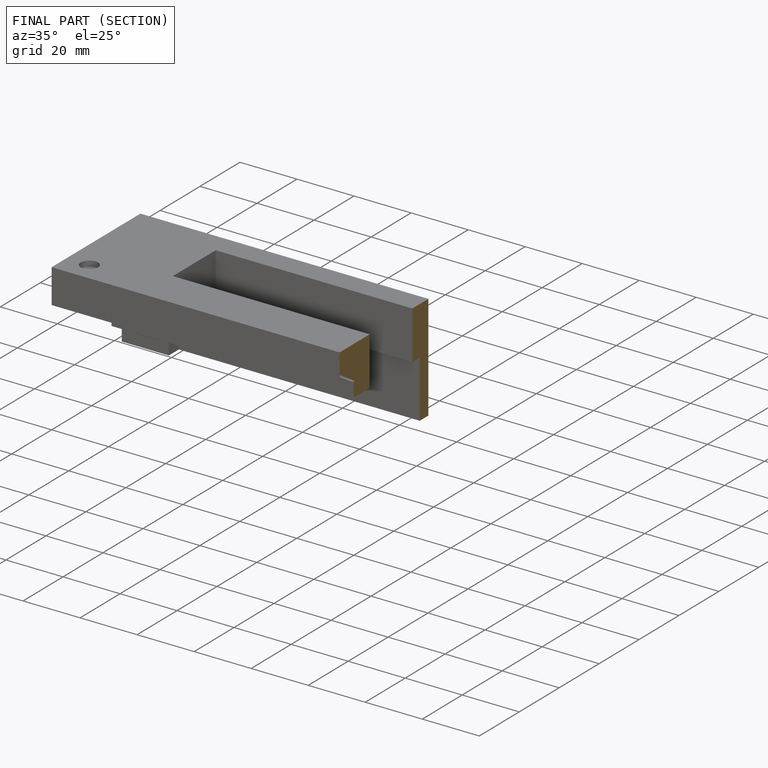
[diagram: finished part — half-section view (interior)]
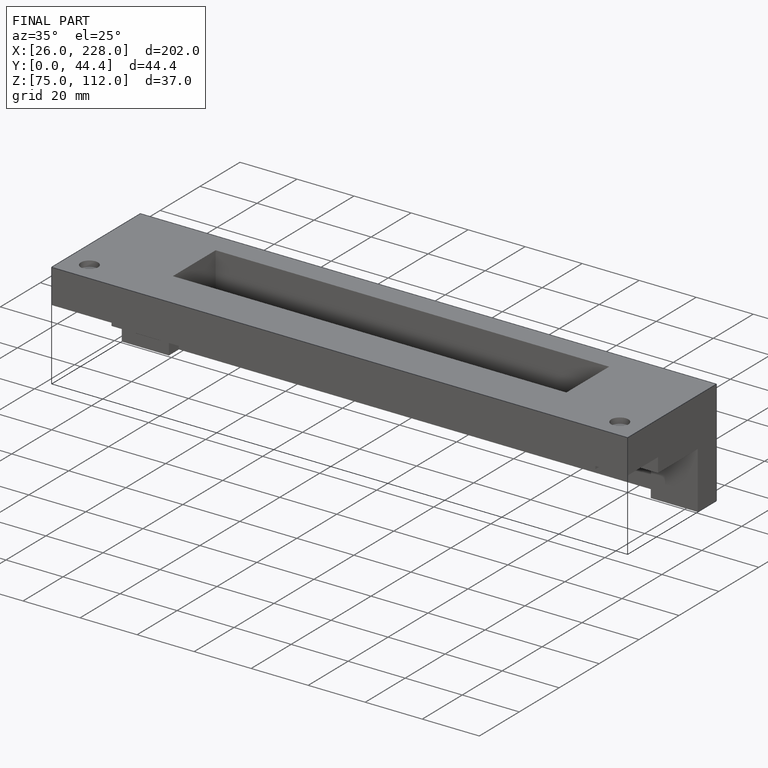
[diagram: finished part — iso view with bounding-box wireframe]
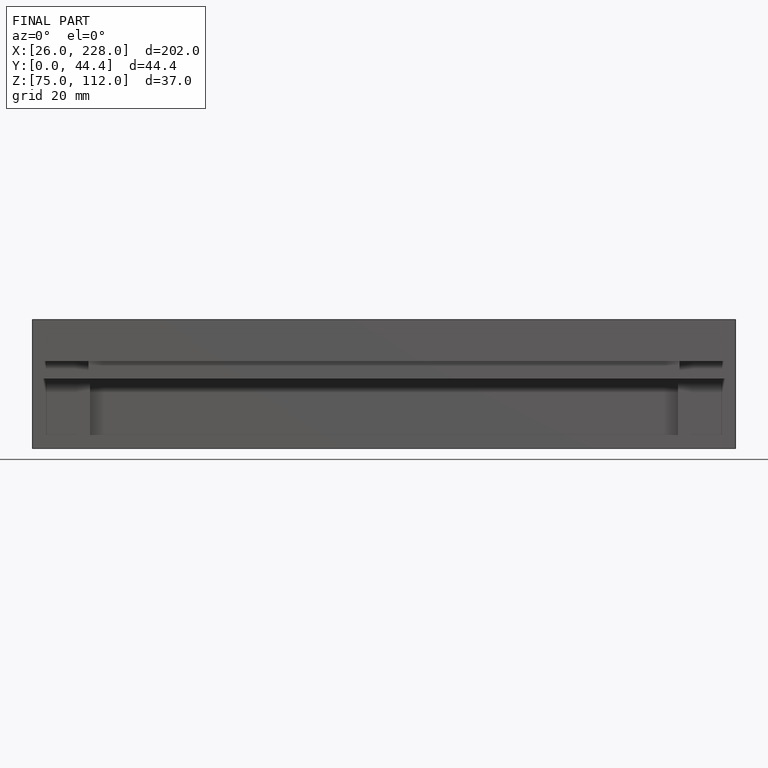
[diagram: finished part — front view with bounding-box wireframe]
